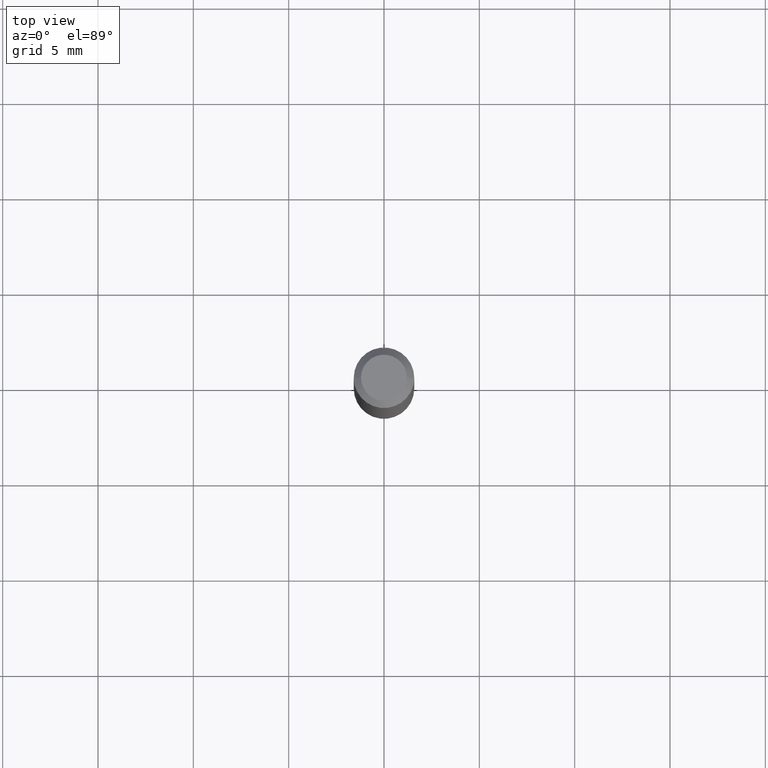
[diagram: clean part render]
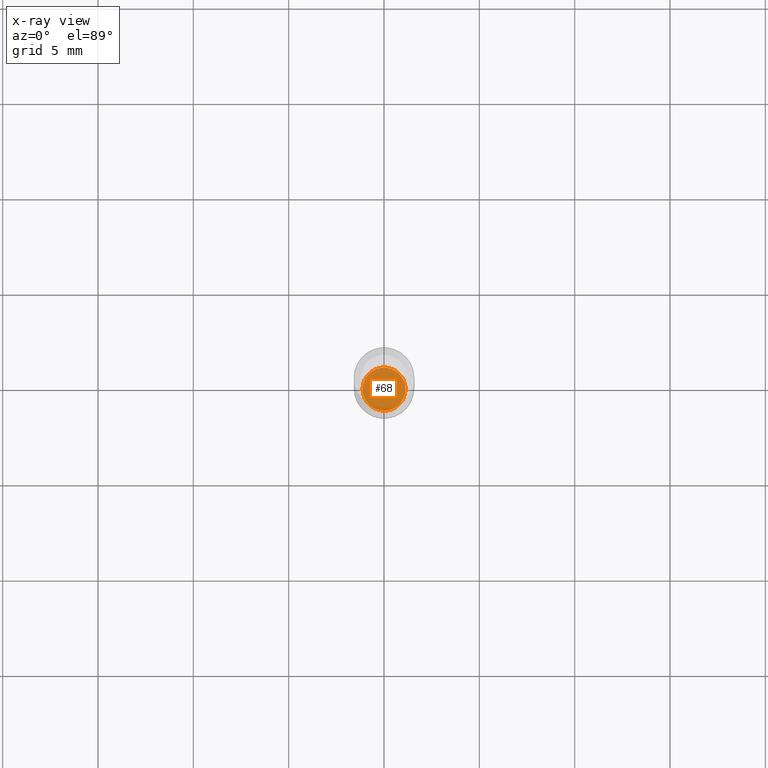
[diagram: x-ray — body ghosted, one internal face saturated and labeled with its STEP entity id]
A machine part, top view, then the same camera in x-ray: the body is ghosted and one INTERNAL B-rep face — a face not visible from any outside direction — is saturated and labeled: STEP entity #68.
In plain terms, the highlighted planar face has unit normal (-0, 0, 1).
Its self-contained STEP definition (entity closure, byte-faithful):
#31 = DIRECTION ( 'NONE',  ( 1.000000000000000000, -6.982962677686265922E-15, 4.876176775795935793E-29 ) ) ;
#68 = ADVANCED_FACE ( 'NONE', ( #341 ), #235, .F. ) ;
#84 = AXIS2_PLACEMENT_3D ( 'NONE', #326, #487, #313 ) ;
#144 = DIRECTION ( 'NONE',  ( -2.438088387897960049E-29, 3.491481338843145188E-15, 1.000000000000000000 ) ) ;
#166 = AXIS2_PLACEMENT_3D ( 'NONE', #301, #305, #296 ) ;
#178 = VERTEX_POINT ( 'NONE', #443 ) ;
#195 = CARTESIAN_POINT ( 'NONE',  ( 0.04449999999999999095, -5.076613866677931960E-15, -1.364999999999999991 ) ) ;
#197 = EDGE_LOOP ( 'NONE', ( #274, #496 ) ) ;
#235 = PLANE ( 'NONE',  #249 ) ;
#249 = AXIS2_PLACEMENT_3D ( 'NONE', #503, #144, #31 ) ;
#274 = ORIENTED_EDGE ( 'NONE', *, *, #468, .F. ) ;
#296 = DIRECTION ( 'NONE',  ( 1.000000000000000000, -6.982962677686258033E-15, 0.000000000000000000 ) ) ;
#301 = CARTESIAN_POINT ( 'NONE',  ( 3.338064920442711836E-29, -4.765872027520893280E-15, -1.364999999999999991 ) ) ;
#305 = DIRECTION ( 'NONE',  ( -2.445468806185136597E-29, 3.491481338843145583E-15, 1.000000000000000000 ) ) ;
#313 = DIRECTION ( 'NONE',  ( 1.000000000000000000, -6.982962677686258033E-15, 0.000000000000000000 ) ) ;
#318 = EDGE_CURVE ( 'NONE', #178, #386, #493, .T. ) ;
#326 = CARTESIAN_POINT ( 'NONE',  ( 3.338064920442711836E-29, -4.765872027520893280E-15, -1.364999999999999991 ) ) ;
#341 = FACE_OUTER_BOUND ( 'NONE', #197, .T. ) ;
#386 = VERTEX_POINT ( 'NONE', #195 ) ;
#443 = CARTESIAN_POINT ( 'NONE',  ( -0.04449999999999999095, -4.447031282933537610E-15, -1.364999999999999991 ) ) ;
#449 = CIRCLE ( 'NONE', #84, 0.04449999999999999095 ) ;
#468 = EDGE_CURVE ( 'NONE', #386, #178, #449, .T. ) ;
#487 = DIRECTION ( 'NONE',  ( -2.445468806185136597E-29, 3.491481338843145583E-15, 1.000000000000000000 ) ) ;
#493 = CIRCLE ( 'NONE', #166, 0.04449999999999999095 ) ;
#496 = ORIENTED_EDGE ( 'NONE', *, *, #318, .F. ) ;
#503 = CARTESIAN_POINT ( 'NONE',  ( 3.338064920442711836E-29, -4.765872027520893280E-15, -1.364999999999999991 ) ) ;